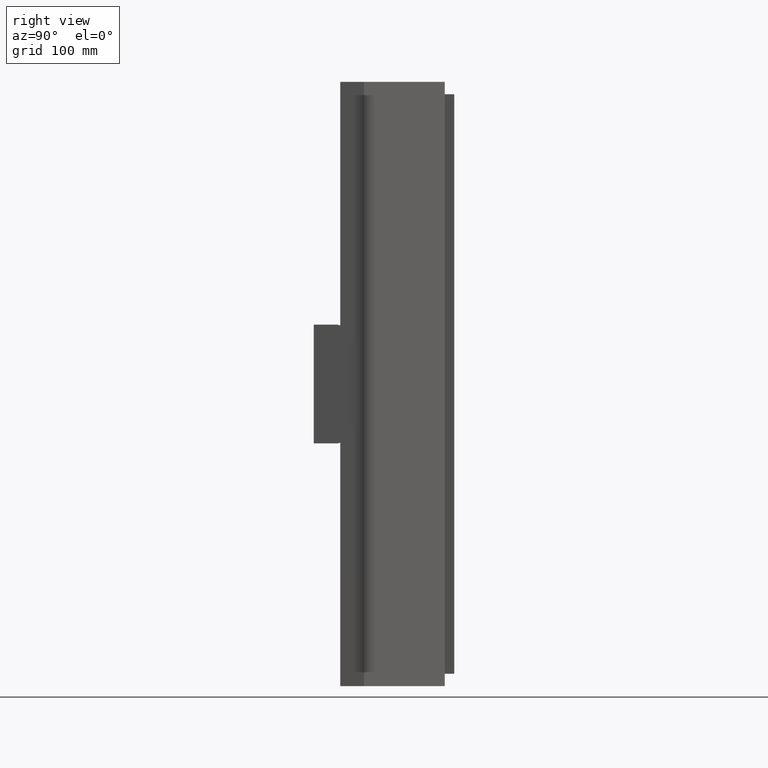
[diagram: clean part render]
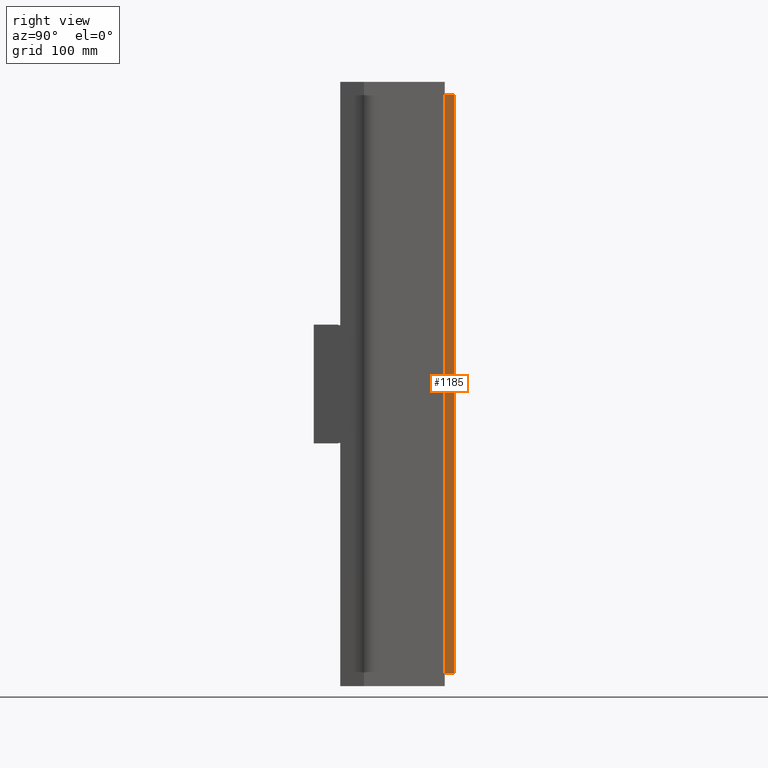
[diagram: same view with one face highlighted and labeled with its STEP entity id]
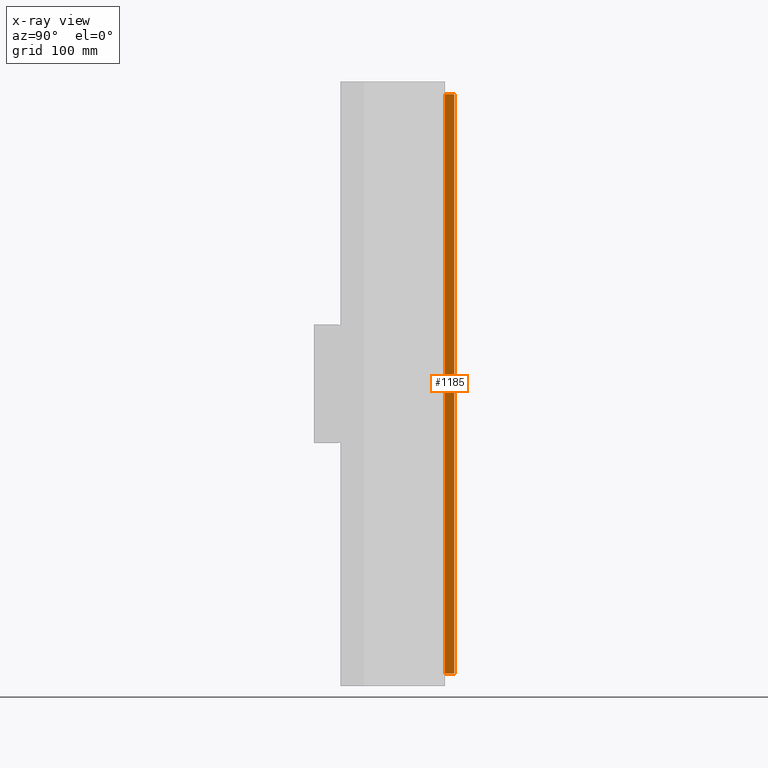
[diagram: x-ray of the same camera — body ghosted, the highlighted face saturated]
A machine part, right view. The second image highlights one B-rep face of the part: STEP entity #1185.
The next image is the same camera in x-ray: the body ghosted, the highlighted face saturated — about 0% of this face is hidden behind the body in this view.
In plain terms, the highlighted planar face has unit normal (-1, 0, 0).
Its self-contained STEP definition (entity closure, byte-faithful):
#32 = CARTESIAN_POINT ( 'NONE',  ( 296.8836175392034400, 10.00000000000000000, 318.0000000000000000 ) ) ;
#192 = CARTESIAN_POINT ( 'NONE',  ( 296.8836175392034400, 0.0000000000000000000, 318.0000000000000000 ) ) ;
#238 = VERTEX_POINT ( 'NONE', #2845 ) ;
#253 = CARTESIAN_POINT ( 'NONE',  ( 296.8836175392034400, 0.0000000000000000000, 304.9999999999999400 ) ) ;
#368 = FACE_OUTER_BOUND ( 'NONE', #480, .T. ) ;
#399 = CARTESIAN_POINT ( 'NONE',  ( 296.8836175392034400, 0.0000000000000000000, -305.0000000000000000 ) ) ;
#480 = EDGE_LOOP ( 'NONE', ( #2711, #647, #1797, #1775 ) ) ;
#557 = VERTEX_POINT ( 'NONE', #1115 ) ;
#647 = ORIENTED_EDGE ( 'NONE', *, *, #845, .F. ) ;
#666 = DIRECTION ( 'NONE',  ( 0.0000000000000000000, 1.000000000000000000, 0.0000000000000000000 ) ) ;
#713 = CARTESIAN_POINT ( 'NONE',  ( 296.8836175392034400, 10.00000000000000000, -305.0000000000000000 ) ) ;
#751 = AXIS2_PLACEMENT_3D ( 'NONE', #1761, #2217, #1288 ) ;
#845 = EDGE_CURVE ( 'NONE', #557, #1930, #1940, .T. ) ;
#1033 = VECTOR ( 'NONE', #1177, 1000.000000000000000 ) ;
#1115 = CARTESIAN_POINT ( 'NONE',  ( 296.8836175392034400, 10.00000000000000000, 304.9999999999999400 ) ) ;
#1177 = DIRECTION ( 'NONE',  ( -0.0000000000000000000, -0.0000000000000000000, -1.000000000000000000 ) ) ;
#1185 = ADVANCED_FACE ( 'NONE', ( #368 ), #2863, .F. ) ;
#1251 = EDGE_CURVE ( 'NONE', #1930, #238, #2823, .T. ) ;
#1288 = DIRECTION ( 'NONE',  ( 0.0000000000000000000, 0.0000000000000000000, 1.000000000000000000 ) ) ;
#1478 = CARTESIAN_POINT ( 'NONE',  ( 296.8836175392034400, 0.0000000000000000000, 304.9999999999999400 ) ) ;
#1500 = DIRECTION ( 'NONE',  ( 0.0000000000000000000, -1.000000000000000000, 0.0000000000000000000 ) ) ;
#1761 = CARTESIAN_POINT ( 'NONE',  ( 296.8836175392034400, 0.0000000000000000000, 318.0000000000000000 ) ) ;
#1775 = ORIENTED_EDGE ( 'NONE', *, *, #1834, .T. ) ;
#1797 = ORIENTED_EDGE ( 'NONE', *, *, #1830, .F. ) ;
#1830 = EDGE_CURVE ( 'NONE', #2208, #557, #2386, .T. ) ;
#1834 = EDGE_CURVE ( 'NONE', #2208, #238, #2446, .T. ) ;
#1930 = VERTEX_POINT ( 'NONE', #713 ) ;
#1940 = LINE ( 'NONE', #32, #1033 ) ;
#2121 = DIRECTION ( 'NONE',  ( -0.0000000000000000000, -0.0000000000000000000, -1.000000000000000000 ) ) ;
#2208 = VERTEX_POINT ( 'NONE', #1478 ) ;
#2217 = DIRECTION ( 'NONE',  ( -1.000000000000000000, 0.0000000000000000000, 0.0000000000000000000 ) ) ;
#2382 = VECTOR ( 'NONE', #666, 1000.000000000000000 ) ;
#2386 = LINE ( 'NONE', #253, #2382 ) ;
#2409 = VECTOR ( 'NONE', #2121, 1000.000000000000000 ) ;
#2446 = LINE ( 'NONE', #192, #2409 ) ;
#2711 = ORIENTED_EDGE ( 'NONE', *, *, #1251, .F. ) ;
#2756 = VECTOR ( 'NONE', #1500, 1000.000000000000000 ) ;
#2823 = LINE ( 'NONE', #399, #2756 ) ;
#2845 = CARTESIAN_POINT ( 'NONE',  ( 296.8836175392034400, 0.0000000000000000000, -305.0000000000000000 ) ) ;
#2863 = PLANE ( 'NONE',  #751 ) ;